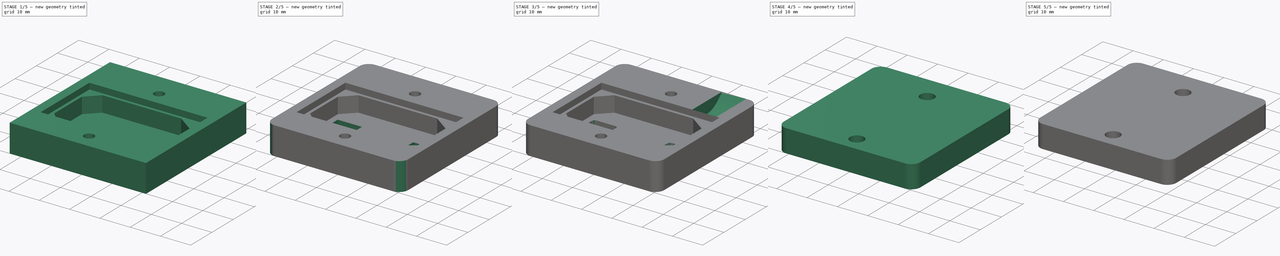
[diagram: build sequence overview — one tinted view per stage of 5, left to right]
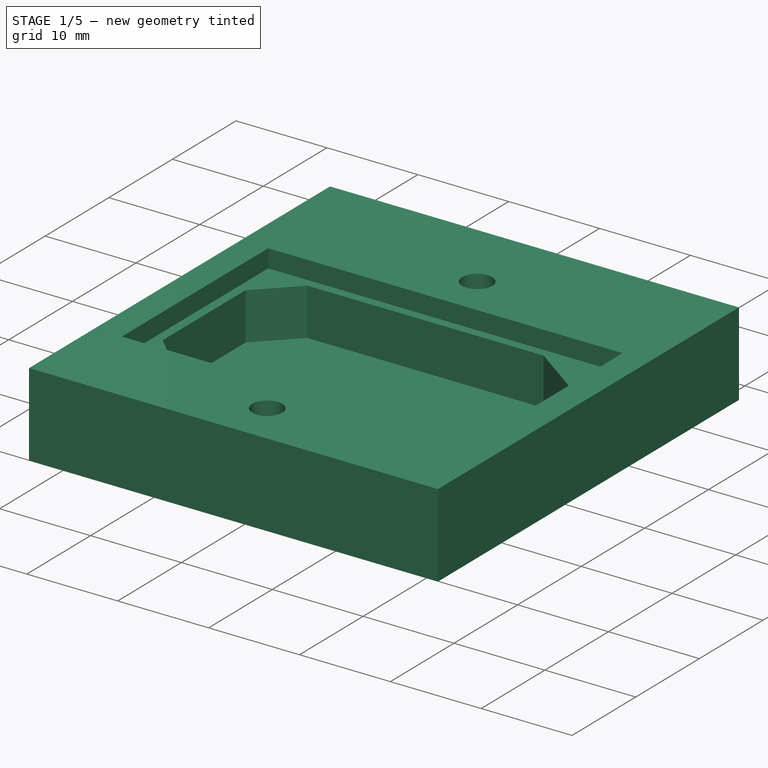
[diagram: stage 1 of 5 — iso view after this stage's code; geometry added in this stage tinted green]
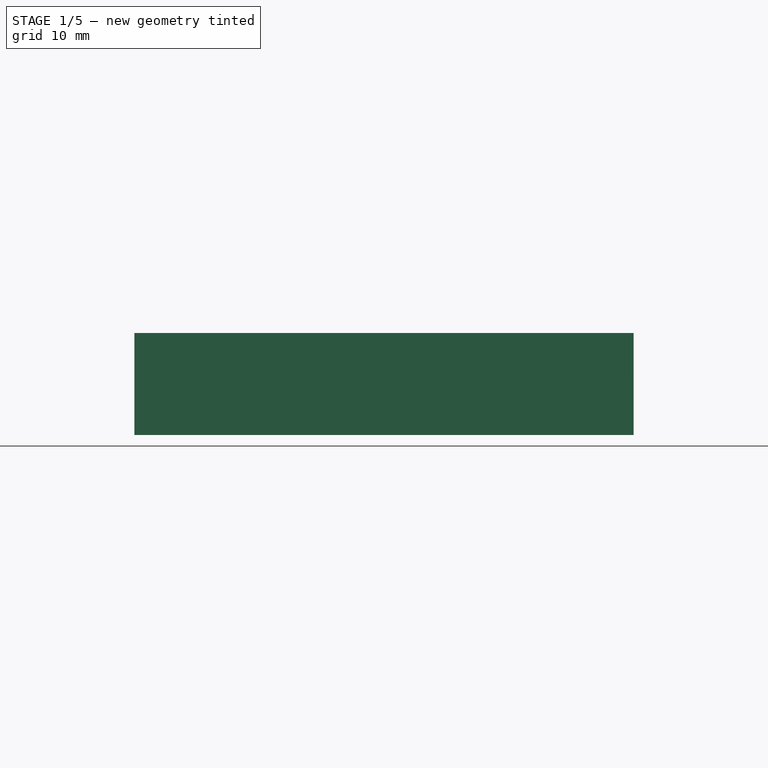
[diagram: stage 1 of 5 — front view after this stage's code; geometry added in this stage tinted green]
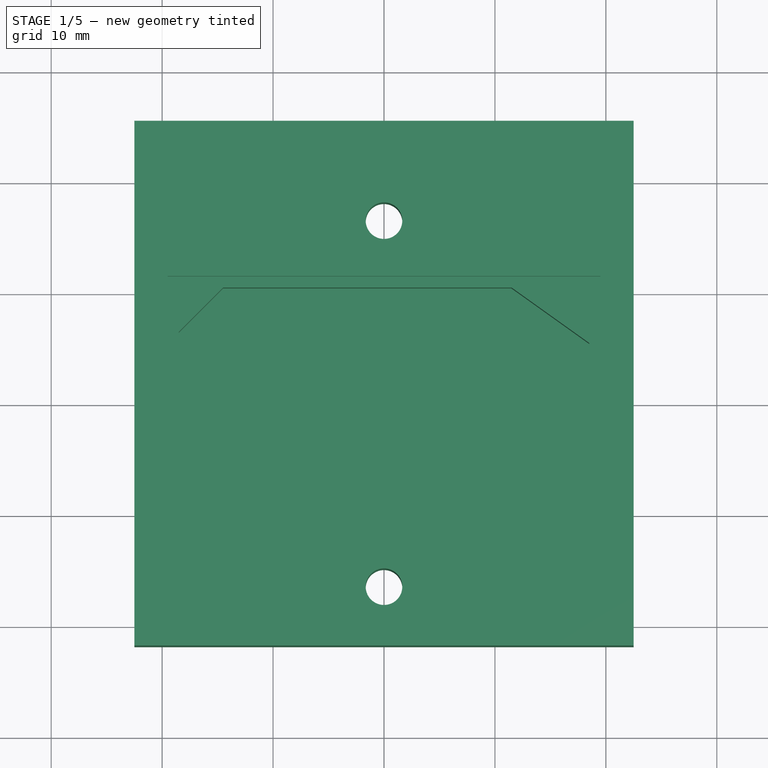
[diagram: stage 1 of 5 — top view after this stage's code; geometry added in this stage tinted green]
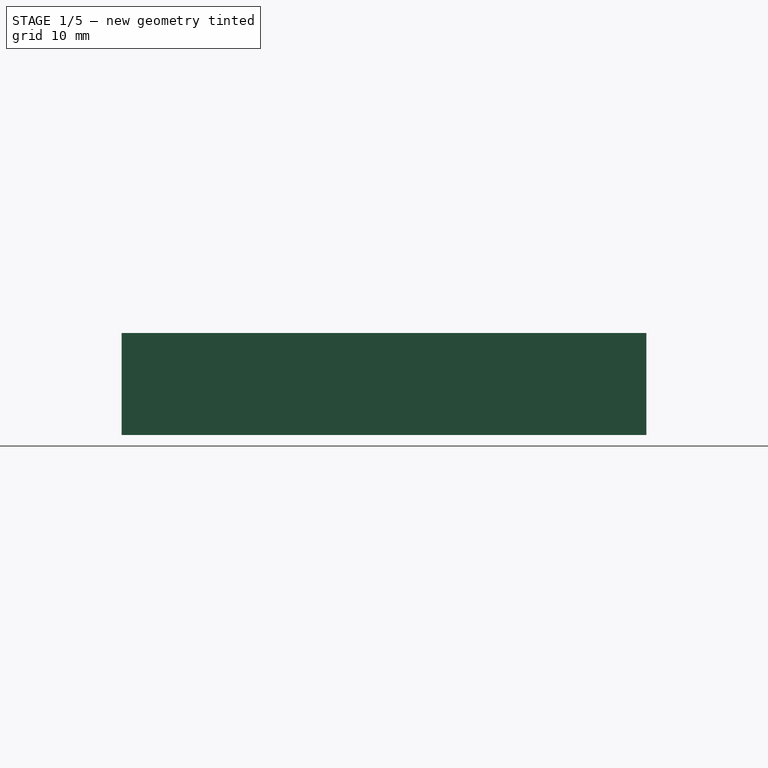
[diagram: stage 1 of 5 — right view after this stage's code; geometry added in this stage tinted green]
FCSTD DOCUMENT  (FreeCAD 0.20R0.20)
Label: linein-enc
License: All rights reserved
LicenseURL: http://en.wikipedia.org/wiki/All_rights_reserved
objects: Sketcher::SketchObject×21, PartDesign::Pocket×9, PartDesign::Pad×5, PartDesign::Fillet×3, PartDesign::SubShapeBinder×2, PartDesign::SubtractiveLoft×2, PartDesign::Body×2, PartDesign::Plane×1
note: 64 computed .brp shape members not serialized (recipe doc carries the construction recipe); baked Part::Feature solids carry a one-line shape summary decoded from their .brp

FEATURE [Sketcher::SketchObject] Sketch  label="MSketch"
  FullyConstrained = false
  MapMode = 5
  Support = -> [XY_Plane]
  sketch-geometry (19):
    g0: LineSegment StartX=-18.5 StartY=10.5 StartZ=0 EndX=-18.5 EndY=-10.5 EndZ=0
    g1: LineSegment StartX=-18.5 StartY=-10.5 StartZ=0 EndX=18.5 EndY=-10.5 EndZ=0
    g2: LineSegment StartX=18.5 StartY=-10.5 StartZ=0 EndX=18.5 EndY=10.5 EndZ=0
    g3: LineSegment StartX=18.5 StartY=10.5 StartZ=0 EndX=-18.5 EndY=10.5 EndZ=0
    g4: GeomPoint X=0 Y=0 Z=0
    g5: Circle CenterX=0 CenterY=16.5 CenterZ=0 NormalX=0 NormalY=0 NormalZ=1 AngleXU=0 Radius=3
    g6: Circle CenterX=0 CenterY=-16.5 CenterZ=0 NormalX=0 NormalY=0 NormalZ=1 AngleXU=0 Radius=3
    g7: LineSegment StartX=9.5 StartY=10.5 StartZ=0 EndX=5.5 EndY=10.5 EndZ=0
    g8: LineSegment StartX=5.5 StartY=10.5 StartZ=0 EndX=5.5 EndY=24.3519 EndZ=0
    g9: LineSegment StartX=5.5 StartY=24.3519 StartZ=0 EndX=9.5 EndY=24.3519 EndZ=0
    g10: LineSegment StartX=9.5 StartY=24.3519 StartZ=0 EndX=9.5 EndY=10.5 EndZ=0
    g11: LineSegment StartX=-16.5 StartY=10.5 StartZ=0 EndX=-12.5 EndY=10.5 EndZ=0
    g12: LineSegment StartX=-12.5 StartY=10.5 StartZ=0 EndX=-12.5 EndY=24.0945 EndZ=0
    g13: LineSegment StartX=-12.5 StartY=24.0945 StartZ=0 EndX=-16.5 EndY=24.0945 EndZ=0
    g14: LineSegment StartX=-16.5 StartY=24.0945 StartZ=0 EndX=-16.5 EndY=10.5 EndZ=0
    g15: LineSegment StartX=-22.5 StartY=25.5 StartZ=0 EndX=22.5 EndY=25.5 EndZ=0
    g16: LineSegment StartX=22.5 StartY=25.5 StartZ=0 EndX=22.5 EndY=-21.8 EndZ=0
    g17: LineSegment StartX=22.5 StartY=-21.8 StartZ=0 EndX=-22.5 EndY=-21.8 EndZ=0
    g18: LineSegment StartX=-22.5 StartY=-21.8 StartZ=0 EndX=-22.5 EndY=25.5 EndZ=0
  constraints (51):
    c: Coincident(g0,g1)
    c: Coincident(g1,g2)
    c: Coincident(g2,g3)
    c: Coincident(g3,g0)
    c: Horizontal(g1)
    c: Horizontal(g3)
    c: Vertical(g0)
    c: Vertical(g2)
    c: Symmetric(g1,g0,g4)
    c: Coincident(g4,g-1)
    c: DistanceY(g2,g2) = 21
    c: DistanceX(g3,g3) = 37
    c: Diameter(g5) = 6
    c: PointOnObject(g5,g-2)
    c: Equal(g6,g5)
    c: Distance(g5,g3) = 6
    c: Symmetric(g5,g6,g-1)
    c: Coincident(g7,g8)
    c: Coincident(g8,g9)
    c: Coincident(g9,g10)
    c: Coincident(g10,g7)
    c: Horizontal(g7)
    c: Horizontal(g9)
    c: Vertical(g8)
    c: Vertical(g10)
    c: PointOnObject(g7,g3)
    c: DistanceX(g9,g9) = 4
    c: DistanceX(g9,g2) = 9
    c: Coincident(g11,g12)
    c: Coincident(g12,g13)
    c: Coincident(g13,g14)
    c: Coincident(g14,g11)
    c: Horizontal(g11)
    c: Horizontal(g13)
    c: Vertical(g12)
    c: Vertical(g14)
    c: PointOnObject(g11,g3)
    c: DistanceX(g13,g13) = 4
    c: DistanceX(g0,g11) = 2
    c: Coincident(g15,g16)
    c: Coincident(g16,g17)
    c: Coincident(g17,g18)
    c: Coincident(g18,g15)
    c: Horizontal(g15)
    c: Horizontal(g17)
    c: Vertical(g16)
    c: Vertical(g18)
    c: Distance(g6,g17) = 5.3
    c: DistanceY(g0,g15) = 15
    c: DistanceX(g17,g0) = 4
    c: DistanceX(g1,g16) = 4
FEATURE [PartDesign::SubShapeBinder] Binder
  BindCopyOnChange = 0
  BindMode = 0
  ClaimChildren = false
  Context = -> Body [Binder.]
  Fuse = false
  MakeFace = true
  OffsetFill = false
  OffsetIntersection = false
  OffsetJoinType = 0
  OffsetOpenResult = false
  PartialLoad = false
  Relative = true
  Support = -> [Sketch]
  _Version = 2
FEATURE [Sketcher::SketchObject] Sketch001
  ExternalGeometry = -> [Binder]
  FullyConstrained = true
  MapMode = 5
  Support = -> [XY_Plane]
  sketch-geometry (4):
    g0: LineSegment StartX=-22.5 StartY=25.5 StartZ=0 EndX=22.5 EndY=25.5 EndZ=0
    g1: LineSegment StartX=22.5 StartY=25.5 StartZ=0 EndX=22.5 EndY=-21.8 EndZ=0
    g2: LineSegment StartX=22.5 StartY=-21.8 StartZ=0 EndX=-22.5 EndY=-21.8 EndZ=0
    g3: LineSegment StartX=-22.5 StartY=-21.8 StartZ=0 EndX=-22.5 EndY=25.5 EndZ=0
  constraints (10):
    c: Coincident(g0,g1)
    c: Coincident(g1,g2)
    c: Coincident(g2,g3)
    c: Coincident(g3,g0)
    c: Horizontal(g0)
    c: Horizontal(g2)
    c: Vertical(g1)
    c: Vertical(g3)
    c: Coincident(g0,g-3)
    c: Coincident(g1,g-4)
FEATURE [PartDesign::Pad] Pad
  Direction = (0,0,1)
  Length = 9.2
  Length2 = 10
  Profile = -> Sketch001
  ReferenceAxis = -> Sketch001 [N_Axis]
  Type = 0
FEATURE [Sketcher::SketchObject] Sketch002
  ExternalGeometry = -> [Binder]
  FullyConstrained = true
  MapMode = 5
  Placement = pos=(0,0,9.2) rot=(0,0,1;0rad)
  Support = -> [Pad]
  sketch-geometry (4):
    g0: LineSegment StartX=-19.5 StartY=11.5 StartZ=0 EndX=19.5 EndY=11.5 EndZ=0
    g1: LineSegment StartX=19.5 StartY=11.5 StartZ=0 EndX=19.5 EndY=-11.5 EndZ=0
    g2: LineSegment StartX=19.5 StartY=-11.5 StartZ=0 EndX=-19.5 EndY=-11.5 EndZ=0
    g3: LineSegment StartX=-19.5 StartY=-11.5 StartZ=0 EndX=-19.5 EndY=11.5 EndZ=0
  constraints (12):
    c: Coincident(g0,g1)
    c: Coincident(g1,g2)
    c: Coincident(g2,g3)
    c: Coincident(g3,g0)
    c: Horizontal(g0)
    c: Horizontal(g2)
    c: Vertical(g1)
    c: Vertical(g3)
    c: DistanceX(g-3,g0) = 1
    c: DistanceX(g2,g-4) = 1
    c: DistanceY(g1,g-4) = 1
    c: DistanceY(g-3,g0) = 1
FEATURE [PartDesign::Pocket] Pocket
  BaseFeature = -> Pad
  Direction = (0,0,-1)
  Length = 2
  Length2 = 5
  Profile = -> Sketch002
  ReferenceAxis = -> Sketch002 [N_Axis]
  Type = 0
FEATURE [Sketcher::SketchObject] Sketch003
  ExternalGeometry = -> [Binder]
  FullyConstrained = true
  MapMode = 5
  Placement = pos=(0,0,9.2) rot=(0,0,1;0rad)
  Support = -> [Pocket]
  sketch-geometry (2):
    g0: Circle CenterX=0 CenterY=16.5 CenterZ=0 NormalX=0 NormalY=0 NormalZ=1 AngleXU=0 Radius=1.65
    g1: Circle CenterX=0 CenterY=-16.5 CenterZ=0 NormalX=0 NormalY=0 NormalZ=1 AngleXU=0 Radius=1.65
  constraints (4):
    c: Coincident(g0,g-3)
    c: Coincident(g1,g-4)
    c: Equal(g0,g1)
    c: Diameter(g0) = 3.3
FEATURE [PartDesign::Pocket] Pocket001
  BaseFeature = -> Pocket
  Direction = (0,0,-1)
  Length = 5
  Length2 = 5
  Profile = -> Sketch003
  ReferenceAxis = -> Sketch003 [N_Axis]
  Type = 1
FEATURE [Sketcher::SketchObject] Sketch004
  ExternalGeometry = -> [Binder]
  FullyConstrained = true
  MapMode = 5
  Placement = pos=(0,0,7.2) rot=(0,0,1;0rad)
  Support = -> [Pocket001]
  sketch-geometry (8):
    g0: LineSegment StartX=-18.5 StartY=6.5 StartZ=0 EndX=-14.5 EndY=10.5 EndZ=0
    g1: LineSegment StartX=-14.5 StartY=10.5 StartZ=0 EndX=11.5 EndY=10.5 EndZ=0
    g2: LineSegment StartX=11.5 StartY=10.5 StartZ=0 EndX=18.5 EndY=5.5 EndZ=0
    g3: LineSegment StartX=18.5 StartY=5.5 StartZ=0 EndX=18.5 EndY=-5.5 EndZ=0
    g4: LineSegment StartX=18.5 StartY=-5.5 StartZ=0 EndX=11.5 EndY=-10.5 EndZ=0
    g5: LineSegment StartX=11.5 StartY=-10.5 StartZ=0 EndX=-14.5 EndY=-10.5 EndZ=0
    g6: LineSegment StartX=-14.5 StartY=-10.5 StartZ=0 EndX=-18.5 EndY=-6.5 EndZ=0
    g7: LineSegment StartX=-18.5 StartY=-6.5 StartZ=0 EndX=-18.5 EndY=6.5 EndZ=0
  constraints (24):
    c: PointOnObject(g0,g-3)
    c: PointOnObject(g0,g-5)
    c: Coincident(g0,g1)
    c: PointOnObject(g1,g-5)
    c: Coincident(g1,g2)
    c: PointOnObject(g2,g-4)
    c: Coincident(g2,g3)
    c: PointOnObject(g3,g-4)
    c: Coincident(g3,g4)
    c: PointOnObject(g4,g-6)
    c: Coincident(g4,g5)
    c: PointOnObject(g5,g-6)
    c: Coincident(g5,g6)
    c: PointOnObject(g6,g-3)
    c: Coincident(g6,g7)
    c: Coincident(g7,g0)
    c: DistanceX(g-5,g0) = 4
    c: DistanceY(g0,g-5) = 4
    c: DistanceY(g-6,g6) = 4
    c: DistanceX(g-6,g5) = 4
    c: DistanceY(g-6,g3) = 5
    c: DistanceX(g4,g-6) = 7
    c: DistanceX(g1,g-5) = 7
    c: DistanceY(g2,g-5) = 5
FEATURE [PartDesign::Pocket] Pocket002
  BaseFeature = -> Pocket001
  Direction = (0,0,-1)
  Length = 5.2
  Length2 = 5
  Profile = -> Sketch004
  ReferenceAxis = -> Sketch004 [N_Axis]
  Type = 0
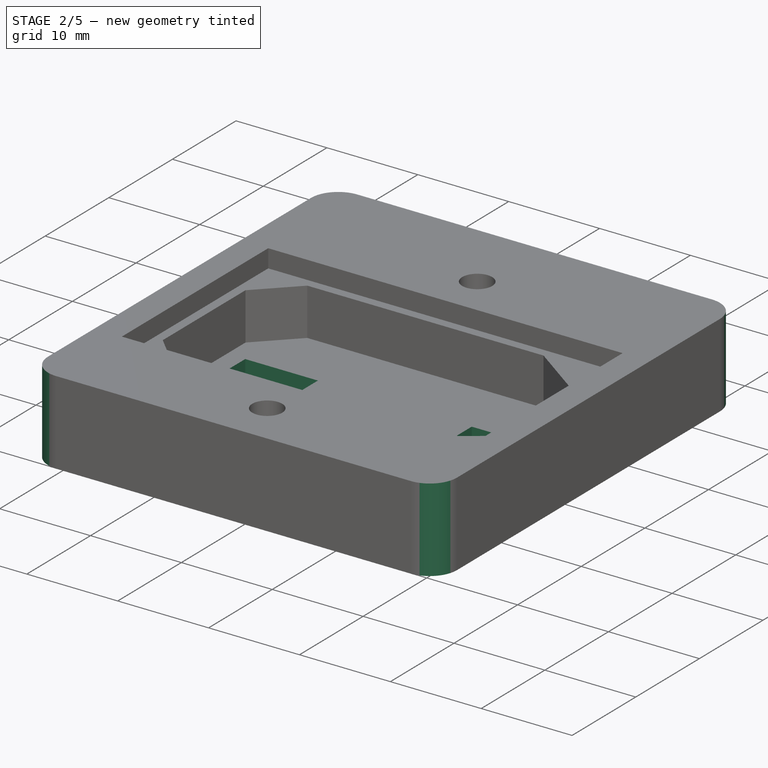
[diagram: stage 2 of 5 — iso view after this stage's code; geometry added in this stage tinted green]
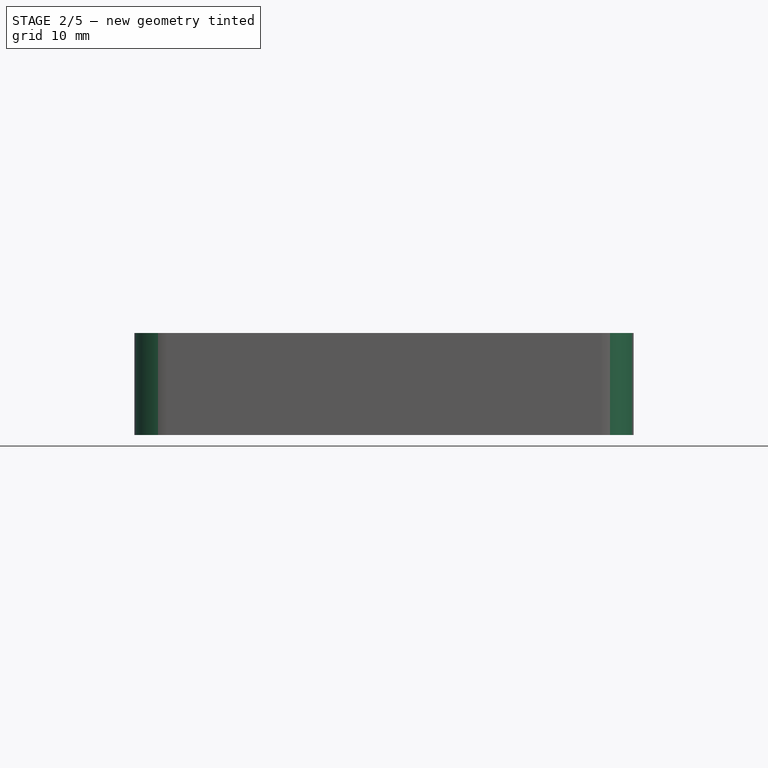
[diagram: stage 2 of 5 — front view after this stage's code; geometry added in this stage tinted green]
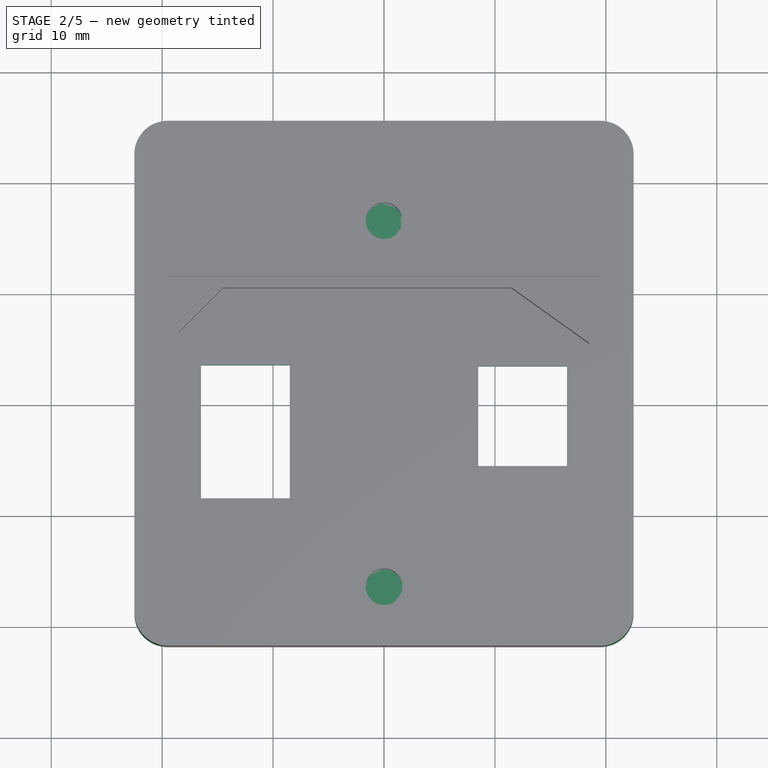
[diagram: stage 2 of 5 — top view after this stage's code; geometry added in this stage tinted green]
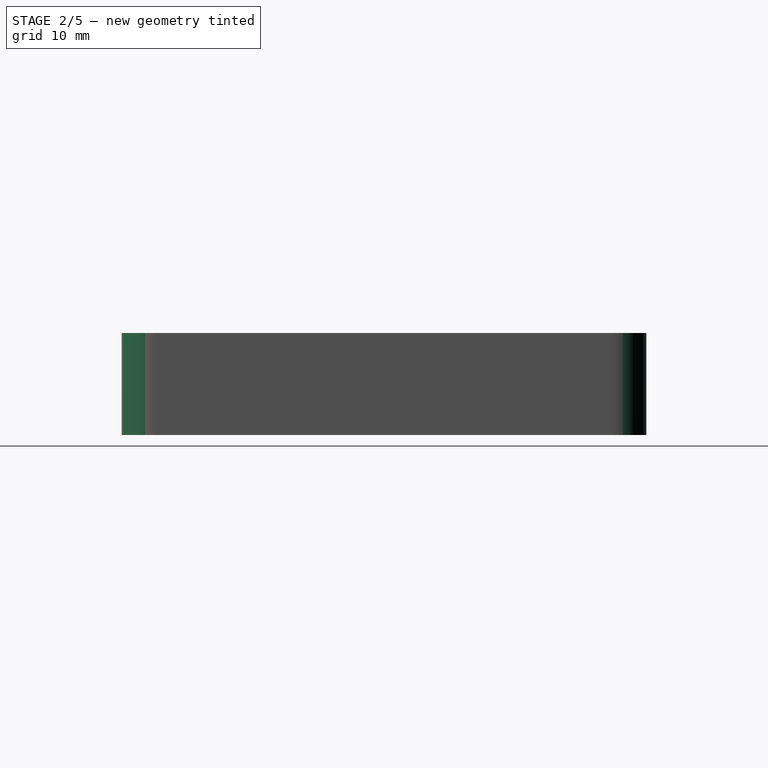
[diagram: stage 2 of 5 — right view after this stage's code; geometry added in this stage tinted green]
FEATURE [Sketcher::SketchObject] Sketch005
  ExternalGeometry = -> [Binder]
  FullyConstrained = true
  MapMode = 5
  Placement = pos=(0,0,2) rot=(0,0,1;0rad)
  Support = -> [Pocket002]
  sketch-geometry (8):
    g0: LineSegment StartX=8.5 StartY=3.5 StartZ=0 EndX=16.5 EndY=3.5 EndZ=0
    g1: LineSegment StartX=16.5 StartY=3.5 StartZ=0 EndX=16.5 EndY=-5.5 EndZ=0
    g2: LineSegment StartX=16.5 StartY=-5.5 StartZ=0 EndX=8.5 EndY=-5.5 EndZ=0
    g3: LineSegment StartX=8.5 StartY=-5.5 StartZ=0 EndX=8.5 EndY=3.5 EndZ=0
    g4: LineSegment StartX=-16.5 StartY=3.6 StartZ=0 EndX=-8.5 EndY=3.6 EndZ=0
    g5: LineSegment StartX=-8.5 StartY=3.6 StartZ=0 EndX=-8.5 EndY=-8.4 EndZ=0
    g6: LineSegment StartX=-8.5 StartY=-8.4 StartZ=0 EndX=-16.5 EndY=-8.4 EndZ=0
    g7: LineSegment StartX=-16.5 StartY=-8.4 StartZ=0 EndX=-16.5 EndY=3.6 EndZ=0
  constraints (24):
    c: Coincident(g0,g1)
    c: Coincident(g1,g2)
    c: Coincident(g2,g3)
    c: Coincident(g3,g0)
    c: Horizontal(g0)
    c: Horizontal(g2)
    c: Vertical(g1)
    c: Vertical(g3)
    c: Coincident(g4,g5)
    c: Coincident(g5,g6)
    c: Coincident(g6,g7)
    c: Coincident(g7,g4)
    c: Horizontal(g4)
    c: Horizontal(g6)
    c: Vertical(g5)
    c: Vertical(g7)
    c: DistanceX(g0,g0) = 8
    c: DistanceY(g3,g3) = 9
    c: DistanceX(g1,g-3) = 2
    c: DistanceY(g-3,g1) = 5
    c: DistanceY(g7,g7) = 12
    c: DistanceX(g4,g4) = 8
    c: DistanceX(g-4,g6) = 2
    c: DistanceY(g-4,g6) = 2.1
FEATURE [PartDesign::Pocket] Pocket003
  BaseFeature = -> Pocket002
  Direction = (0,0,-1)
  Length = 5
  Length2 = 5
  Profile = -> Sketch005
  ReferenceAxis = -> Sketch005 [N_Axis]
  Type = 1
FEATURE [Sketcher::SketchObject] Sketch006
  ExternalGeometry = -> [Pocket003]
  FullyConstrained = true
  MapMode = 5
  Placement = pos=(0,0,0) rot=(1,0,0;3.14159rad)
  Support = -> [Pocket003]
  sketch-geometry (2):
    g0: Circle CenterX=0 CenterY=16.5 CenterZ=0 NormalX=0 NormalY=0 NormalZ=1 AngleXU=0 Radius=3
    g1: Circle CenterX=0 CenterY=-16.5 CenterZ=0 NormalX=0 NormalY=0 NormalZ=1 AngleXU=0 Radius=3
  constraints (4):
    c: Coincident(g0,g-3)
    c: Coincident(g1,g-4)
    c: Equal(g1,g0)
    c: Diameter(g0) = 6
FEATURE [PartDesign::Pocket] Pocket004
  BaseFeature = -> Pocket003
  Direction = (0,0,1)
  Length = 5
  Length2 = 5
  Profile = -> Sketch006
  ReferenceAxis = -> Sketch006 [N_Axis]
  Type = 0
FEATURE [Sketcher::SketchObject] Sketch007
  FullyConstrained = false
  MapMode = 5
  Placement = pos=(0,0,5) rot=(1,0,0;3.14159rad)
  Support = -> [Pocket004]
  sketch-geometry (8):
    g0: LineSegment StartX=-5.04285 StartY=20.7352 StartZ=0 EndX=6.28256 EndY=20.7352 EndZ=0
    g1: LineSegment StartX=6.28256 StartY=20.7352 StartZ=0 EndX=6.28256 EndY=12.4651 EndZ=0
    g2: LineSegment StartX=6.28256 StartY=12.4651 StartZ=0 EndX=-5.04285 EndY=12.4651 EndZ=0
    g3: LineSegment StartX=-5.04285 StartY=12.4651 StartZ=0 EndX=-5.04285 EndY=20.7352 EndZ=0
    g4: LineSegment StartX=-5.72764 StartY=-12.9776 StartZ=0 EndX=3.33269 EndY=-12.9776 EndZ=0
    g5: LineSegment StartX=3.33269 StartY=-12.9776 StartZ=0 EndX=3.33269 EndY=-20.5103 EndZ=0
    g6: LineSegment StartX=3.33269 StartY=-20.5103 StartZ=0 EndX=-5.72764 EndY=-20.5103 EndZ=0
    g7: LineSegment StartX=-5.72764 StartY=-20.5103 StartZ=0 EndX=-5.72764 EndY=-12.9776 EndZ=0
  constraints (16):
    c: Coincident(g0,g1)
    c: Coincident(g1,g2)
    c: Coincident(g2,g3)
    c: Coincident(g3,g0)
    c: Horizontal(g0)
    c: Horizontal(g2)
    c: Vertical(g1)
    c: Vertical(g3)
    c: Coincident(g4,g5)
    c: Coincident(g5,g6)
    c: Coincident(g6,g7)
    c: Coincident(g7,g4)
    c: Horizontal(g4)
    c: Horizontal(g6)
    c: Vertical(g5)
    c: Vertical(g7)
FEATURE [PartDesign::Pad] Pad001
  BaseFeature = -> Pocket004
  Direction = (0,0,-1)
  Length = 0.2
  Length2 = 10
  Profile = -> Sketch007
  ReferenceAxis = -> Sketch007 [N_Axis]
  Type = 0
FEATURE [PartDesign::Fillet] Fillet
  Base = -> Pad001 [Edge8,Edge2,Edge1,Edge5]
  BaseFeature = -> Pad001
  Radius = 3
  SupportTransform = false
  UseAllEdges = false
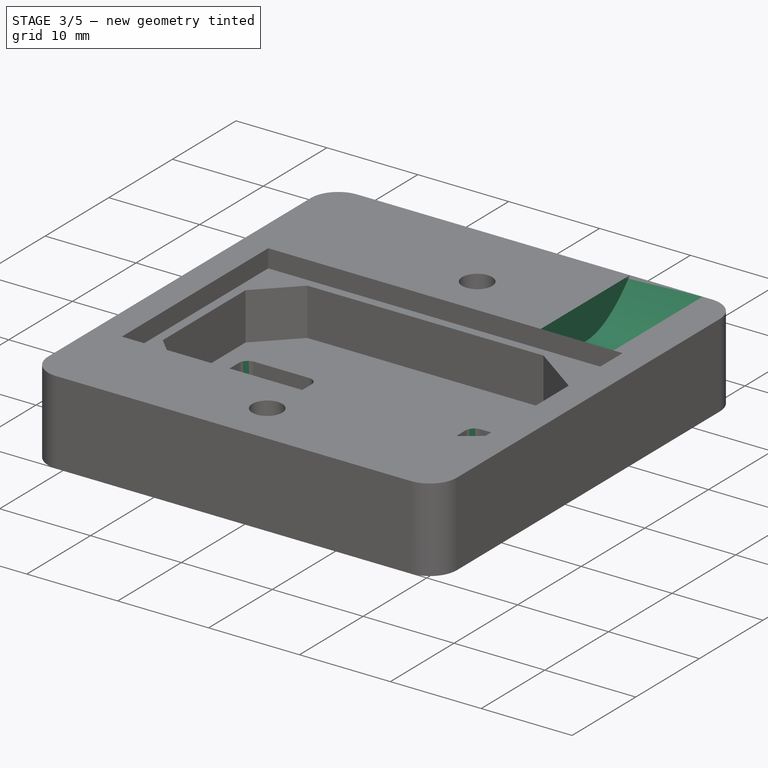
[diagram: stage 3 of 5 — iso view after this stage's code; geometry added in this stage tinted green]
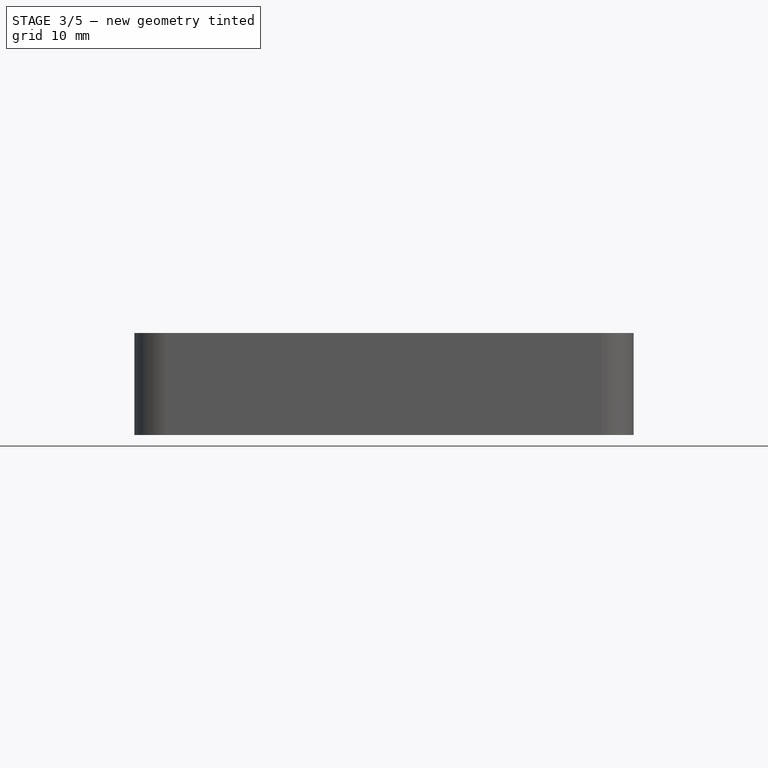
[diagram: stage 3 of 5 — front view after this stage's code; geometry added in this stage tinted green]
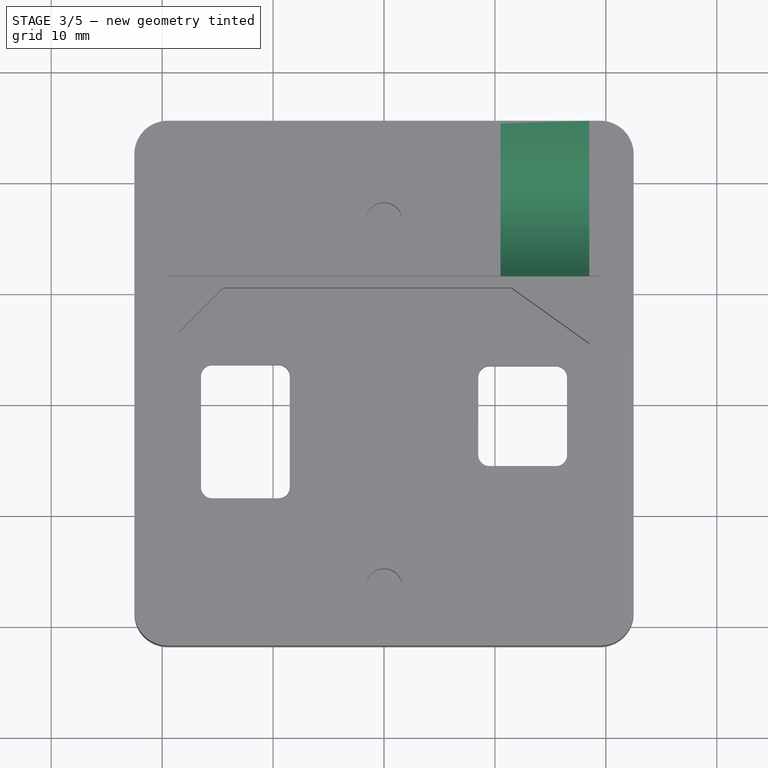
[diagram: stage 3 of 5 — top view after this stage's code; geometry added in this stage tinted green]
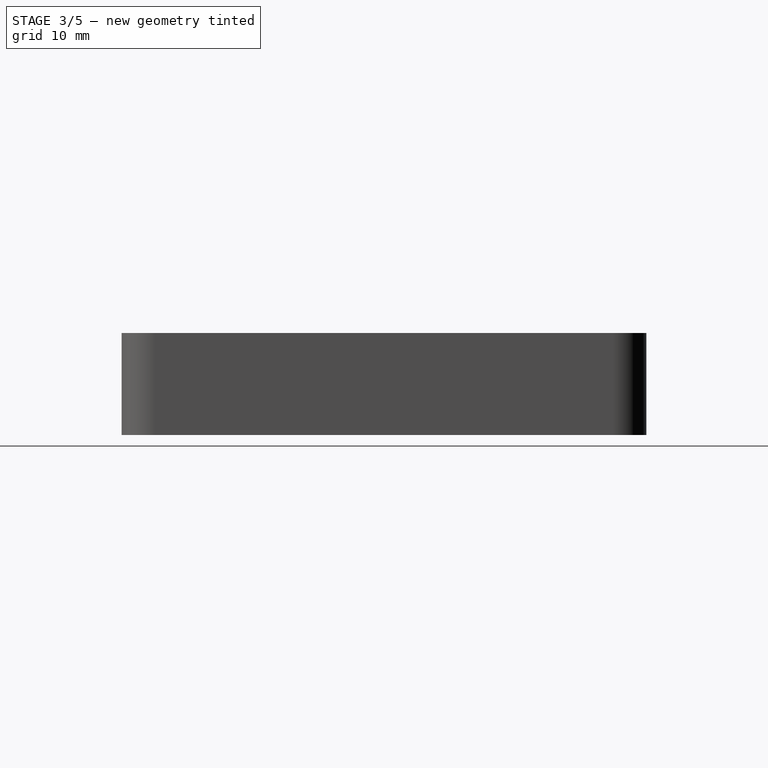
[diagram: stage 3 of 5 — right view after this stage's code; geometry added in this stage tinted green]
FEATURE [PartDesign::Fillet] Fillet001
  Base = -> Fillet [Edge57,Edge55,Edge53,Edge52]
  BaseFeature = -> Fillet
  Radius = 1
  SupportTransform = false
  UseAllEdges = false
FEATURE [PartDesign::Fillet] Fillet002
  Base = -> Fillet001 [Edge61,Edge59,Edge57,Edge56]
  BaseFeature = -> Fillet001
  Radius = 1
  SupportTransform = false
  UseAllEdges = false
FEATURE [Sketcher::SketchObject] Sketch008
  ExternalGeometry = -> [Fillet002]
  FullyConstrained = true
  MapMode = 5
  Placement = pos=(0,11.5,0) rot=(1,0,0;1.5708rad)
  Support = -> [Fillet002]
  sketch-geometry (4):
    g0: LineSegment StartX=18.5 StartY=9.2 StartZ=0 EndX=10.5 EndY=9.2 EndZ=0
    g1: LineSegment StartX=10.5 StartY=9.2 StartZ=0 EndX=10.5 EndY=10.7 EndZ=0
    g2: LineSegment StartX=10.5 StartY=10.7 StartZ=0 EndX=18.5 EndY=10.7 EndZ=0
    g3: LineSegment StartX=18.5 StartY=10.7 StartZ=0 EndX=18.5 EndY=9.2 EndZ=0
  constraints (12):
    c: Coincident(g0,g1)
    c: Coincident(g1,g2)
    c: Coincident(g2,g3)
    c: Coincident(g3,g0)
    c: Horizontal(g0)
    c: Horizontal(g2)
    c: Vertical(g1)
    c: Vertical(g3)
    c: PointOnObject(g0,g-4)
    c: DistanceX(g2,g2) = 8
    c: DistanceX(g2,g-4) = 1
    c: DistanceY(g1,g1) = 1.5
FEATURE [PartDesign::Plane] DatumPlane
  AttachmentOffset = pos=(0,24,-7) rot=(0,0,1;0rad)
  Length = 60
  MapMode = 5
  Placement = pos=(0,18.5,24) rot=(1,0,0;1.5708rad)
  ResizeMode = 0
  Support = -> [Fillet002]
  Width = 60
FEATURE [Sketcher::SketchObject] Sketch009
  ExternalGeometry = -> [Sketch008,Fillet002]
  FullyConstrained = false
  MapMode = 5
  Placement = pos=(0,18.5,24) rot=(1,0,0;1.5708rad)
  Support = -> [DatumPlane]
  sketch-geometry (4):
    g0: LineSegment StartX=10.5 StartY=-13.3803 StartZ=0 EndX=18.5 EndY=-13.3803 EndZ=0
    g1: LineSegment StartX=18.5 StartY=-13.3803 StartZ=0 EndX=18.5 EndY=-18.7214 EndZ=0
    g2: LineSegment StartX=18.5 StartY=-18.7214 StartZ=0 EndX=10.5 EndY=-18.7214 EndZ=0
    g3: LineSegment StartX=10.5 StartY=-18.7214 StartZ=0 EndX=10.5 EndY=-13.3803 EndZ=0
  constraints (10):
    c: Coincident(g0,g1)
    c: Coincident(g1,g2)
    c: Coincident(g2,g3)
    c: Coincident(g3,g0)
    c: Horizontal(g0)
    c: Horizontal(g2)
    c: Vertical(g1)
    c: Vertical(g3)
    c: Vertical(g0,g-4)
    c: Vertical(g-3,g0)
FEATURE [Sketcher::SketchObject] Sketch010
  ExternalGeometry = -> [Sketch008]
  FullyConstrained = true
  MapMode = 5
  Placement = pos=(0,25.5,0) rot=(0,0.707107,0.707107;3.14159rad)
  Support = -> [Fillet002]
  sketch-geometry (4):
    g0: LineSegment StartX=-18.5 StartY=10.7 StartZ=0 EndX=-10.5 EndY=10.7 EndZ=0
    g1: LineSegment StartX=-10.5 StartY=10.7 StartZ=0 EndX=-10.5 EndY=9.2 EndZ=0
    g2: LineSegment StartX=-10.5 StartY=9.2 StartZ=0 EndX=-18.5 EndY=9.2 EndZ=0
    g3: LineSegment StartX=-18.5 StartY=9.2 StartZ=0 EndX=-18.5 EndY=10.7 EndZ=0
  constraints (10):
    c: Coincident(g0,g1)
    c: Coincident(g1,g2)
    c: Coincident(g2,g3)
    c: Coincident(g3,g0)
    c: Horizontal(g0)
    c: Horizontal(g2)
    c: Vertical(g1)
    c: Vertical(g3)
    c: Coincident(g0,g-3)
    c: Coincident(g1,g-4)
FEATURE [PartDesign::SubtractiveLoft] SubtractiveLoft
  BaseFeature = -> Fillet002
  Closed = false
  Profile = -> Sketch008
  Ruled = false
  Sections = -> [Sketch009,Sketch010]
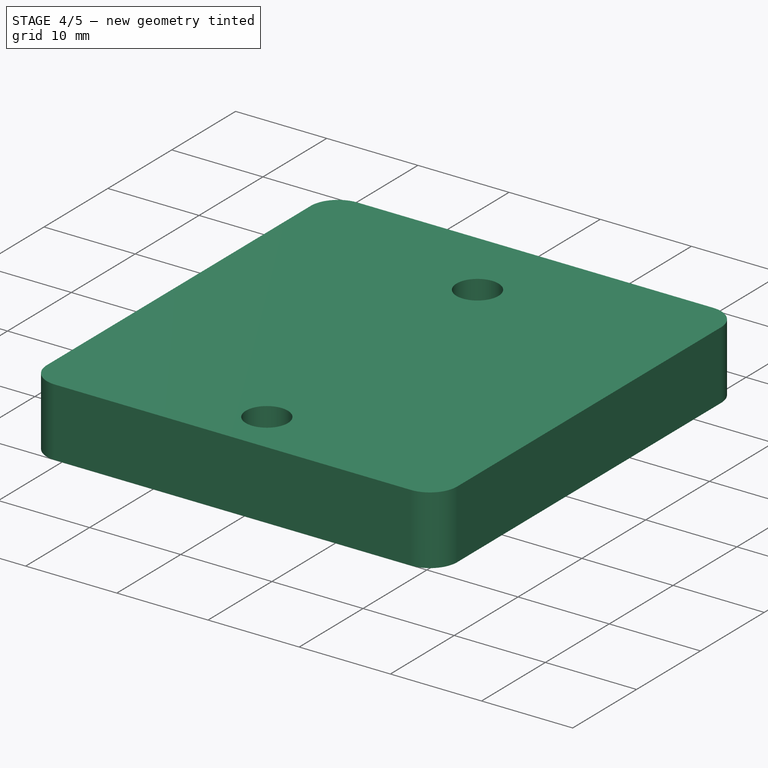
[diagram: stage 4 of 5 — iso view after this stage's code; geometry added in this stage tinted green]
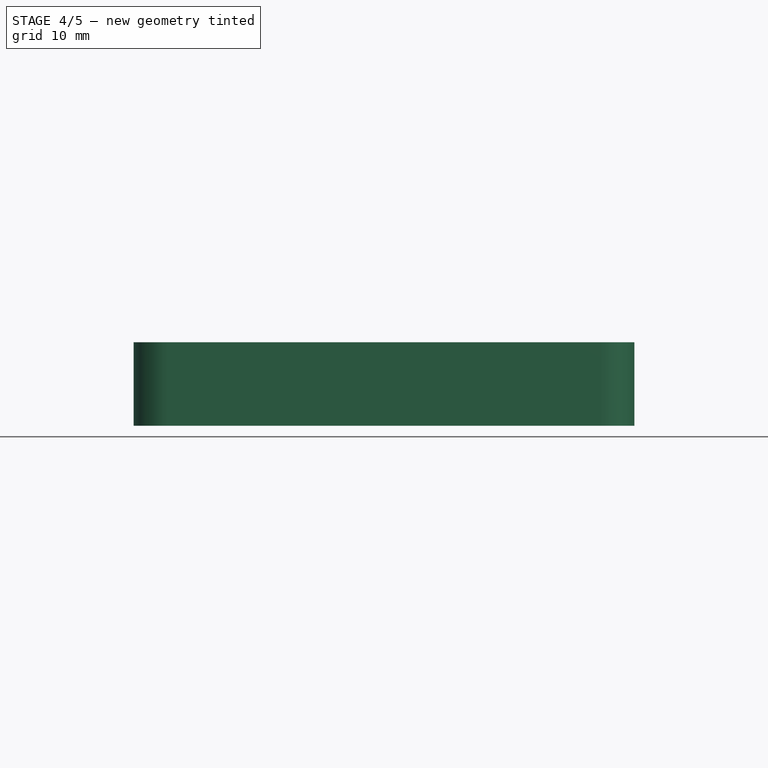
[diagram: stage 4 of 5 — front view after this stage's code; geometry added in this stage tinted green]
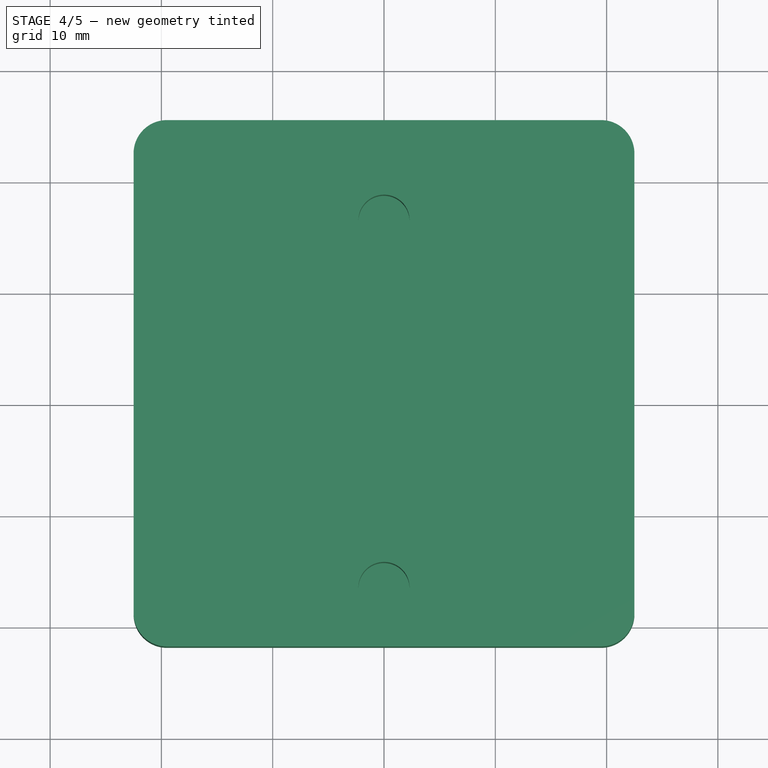
[diagram: stage 4 of 5 — top view after this stage's code; geometry added in this stage tinted green]
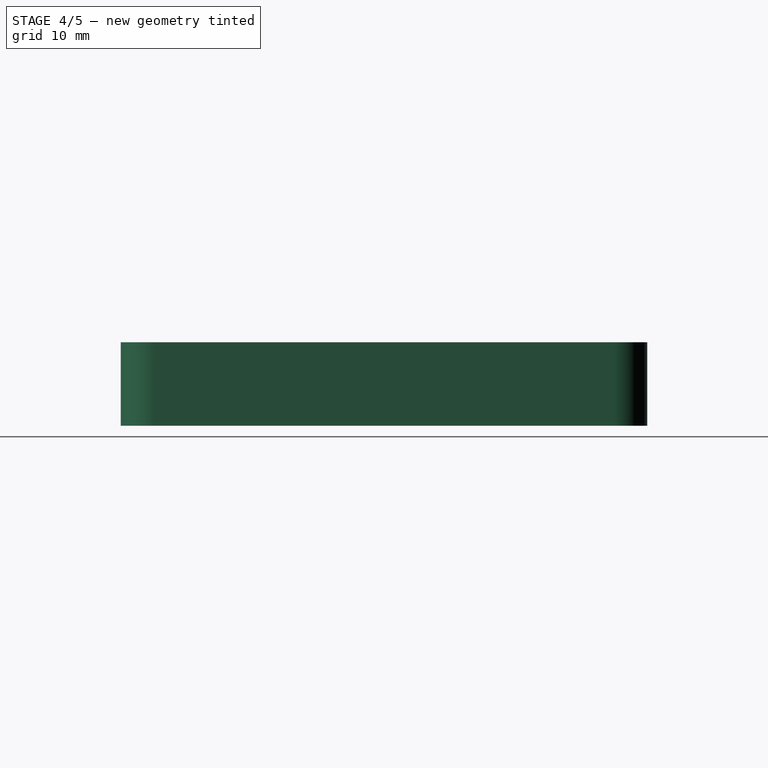
[diagram: stage 4 of 5 — right view after this stage's code; geometry added in this stage tinted green]
FEATURE [Sketcher::SketchObject] Sketch011
  ExternalGeometry = -> [SubtractiveLoft,Sketch009]
  FullyConstrained = true
  MapMode = 5
  Placement = pos=(0,11.5,0) rot=(1,0,0;1.5708rad)
  Support = -> [SubtractiveLoft]
  sketch-geometry (4):
    g0: LineSegment StartX=-14.5 StartY=9.2 StartZ=0 EndX=-6.5 EndY=9.2 EndZ=0
    g1: LineSegment StartX=-6.5 StartY=9.2 StartZ=0 EndX=-6.5 EndY=10.7 EndZ=0
    g2: LineSegment StartX=-6.5 StartY=10.7 StartZ=0 EndX=-14.5 EndY=10.7 EndZ=0
    g3: LineSegment StartX=-14.5 StartY=10.7 StartZ=0 EndX=-14.5 EndY=9.2 EndZ=0
  constraints (12):
    c: Coincident(g0,g1)
    c: Coincident(g1,g2)
    c: Coincident(g2,g3)
    c: Coincident(g3,g0)
    c: Horizontal(g0)
    c: Horizontal(g2)
    c: Vertical(g1)
    c: Vertical(g3)
    c: PointOnObject(g0,g-3)
    c: DistanceY(g1,g1) = 1.5
    c: DistanceX(g2,g2) = 8
    c: DistanceX(g-3,g2) = 5
FEATURE [Sketcher::SketchObject] Sketch012
  ExternalGeometry = -> [Sketch011,Sketch009]
  FullyConstrained = true
  MapMode = 5
  Placement = pos=(0,18.5,24) rot=(1,0,0;1.5708rad)
  Support = -> [DatumPlane]
  sketch-geometry (4):
    g0: LineSegment StartX=-14.5 StartY=-13.3 StartZ=0 EndX=-6.5 EndY=-13.3 EndZ=0
    g1: LineSegment StartX=-6.5 StartY=-13.3 StartZ=0 EndX=-6.5 EndY=-18.7214 EndZ=0
    g2: LineSegment StartX=-6.5 StartY=-18.7214 StartZ=0 EndX=-14.5 EndY=-18.7214 EndZ=0
    g3: LineSegment StartX=-14.5 StartY=-18.7214 StartZ=0 EndX=-14.5 EndY=-13.3 EndZ=0
  constraints (10):
    c: Coincident(g0,g1)
    c: Coincident(g1,g2)
    c: Coincident(g2,g3)
    c: Coincident(g3,g0)
    c: Horizontal(g2)
    c: Vertical(g1)
    c: Vertical(g3)
    c: Coincident(g0,g-3)
    c: Coincident(g-4,g0)
    c: Horizontal(g1,g-5)
FEATURE [Sketcher::SketchObject] Sketch013
  ExternalGeometry = -> [Sketch011]
  FullyConstrained = true
  MapMode = 5
  Placement = pos=(0,25.5,0) rot=(0,0.707107,0.707107;3.14159rad)
  Support = -> [SubtractiveLoft]
  sketch-geometry (4):
    g0: LineSegment StartX=6.5 StartY=10.7 StartZ=0 EndX=14.5 EndY=10.7 EndZ=0
    g1: LineSegment StartX=14.5 StartY=10.7 StartZ=0 EndX=14.5 EndY=9.2 EndZ=0
    g2: LineSegment StartX=14.5 StartY=9.2 StartZ=0 EndX=6.5 EndY=9.2 EndZ=0
    g3: LineSegment StartX=6.5 StartY=9.2 StartZ=0 EndX=6.5 EndY=10.7 EndZ=0
  constraints (10):
    c: Coincident(g0,g1)
    c: Coincident(g1,g2)
    c: Coincident(g2,g3)
    c: Coincident(g3,g0)
    c: Horizontal(g0)
    c: Horizontal(g2)
    c: Vertical(g1)
    c: Vertical(g3)
    c: Coincident(g0,g-3)
    c: Coincident(g1,g-4)
FEATURE [PartDesign::SubtractiveLoft] SubtractiveLoft001
  BaseFeature = -> SubtractiveLoft
  Closed = false
  Profile = -> Sketch011
  Ruled = false
  Sections = -> [Sketch012,Sketch013]
FEATURE [PartDesign::Body] Body  label="ltop"
  Group = -> [Binder,Sketch001,Pad,Sketch002,Pocket,Sketch003,Pocket001,Sketch004,Pocket002,Sketch005,Pocket003,Sketch006,Pocket004,Sketch007,Pad001,Fillet,Fillet001,Fillet002,Sketch008,DatumPlane,Sketch009,Sketch010,SubtractiveLoft,Sketch011,Sketch012,Sketch013,SubtractiveLoft001]
  Origin = -> Origin
  Tip = -> SubtractiveLoft001
FEATURE [PartDesign::SubShapeBinder] Binder001
  BindCopyOnChange = 0
  BindMode = 0
  ClaimChildren = false
  Context = -> Body001 [Binder001.]
  Fuse = false
  MakeFace = true
  OffsetFill = false
  OffsetIntersection = false
  OffsetJoinType = 0
  OffsetOpenResult = false
  PartialLoad = false
  Relative = true
  Support = -> [Body]
  _Version = 2
FEATURE [Sketcher::SketchObject] Sketch014
  AttachmentOffset = pos=(0,0,9.2) rot=(0,0,1;0rad)
  ExternalGeometry = -> [Binder001]
  FullyConstrained = true
  MapMode = 5
  Placement = pos=(0,0,9.2) rot=(0,0,1;0rad)
  Support = -> [XY_Plane001]
  sketch-geometry (10):
    g0: ArcOfCircle CenterX=-19.5 CenterY=22.5 CenterZ=0 NormalX=0 NormalY=0 NormalZ=1 AngleXU=0 Radius=3 StartAngle=1.5708 EndAngle=3.14159
    g1: LineSegment StartX=-19.5 StartY=25.5 StartZ=0 EndX=19.5 EndY=25.5 EndZ=0
    g2: ArcOfCircle CenterX=19.5 CenterY=22.5 CenterZ=0 NormalX=0 NormalY=0 NormalZ=1 AngleXU=0 Radius=3 StartAngle=0 EndAngle=1.5708
    g3: LineSegment StartX=22.5 StartY=22.5 StartZ=0 EndX=22.5 EndY=-18.8 EndZ=0
    g4: ArcOfCircle CenterX=19.5 CenterY=-18.8 CenterZ=0 NormalX=0 NormalY=0 NormalZ=1 AngleXU=0 Radius=3 StartAngle=4.71239 EndAngle=6.28319
    g5: LineSegment StartX=19.5 StartY=-21.8 StartZ=0 EndX=-19.5 EndY=-21.8 EndZ=0
    g6: ArcOfCircle CenterX=-19.5 CenterY=-18.8 CenterZ=0 NormalX=0 NormalY=0 NormalZ=1 AngleXU=0 Radius=3 StartAngle=3.14159 EndAngle=4.71239
    g7: LineSegment StartX=-22.5 StartY=-18.8 StartZ=0 EndX=-22.5 EndY=22.5 EndZ=0
    g8: GeomPoint X=-22.5 Y=25.5 Z=0
    g9: GeomPoint X=22.5 Y=-21.8 Z=0
  constraints (21):
    c: Tangent(g0,g1) = 1.5708
    c: Tangent(g1,g2) = 1.5708
    c: Tangent(g2,g3) = 1.5708
    c: Tangent(g3,g4) = 1.5708
    c: Tangent(g4,g5) = 1.5708
    c: Tangent(g5,g6) = 1.5708
    c: Tangent(g6,g7) = 1.5708
    c: Tangent(g7,g0) = 1.5708
    c: Horizontal(g1)
    c: Horizontal(g5)
    c: Vertical(g3)
    c: Equal(g0,g2)
    c: Equal(g2,g4)
    c: Equal(g4,g6)
    c: PointOnObject(g8,g1)
    c: PointOnObject(g8,g7)
    c: PointOnObject(g9,g3)
    c: PointOnObject(g9,g5)
    c: Coincident(g3,g-4)
    c: Coincident(g0,g-3)
    c: Coincident(g0,g-6)
FEATURE [PartDesign::Pad] Pad002
  Direction = (0,0,1)
  Length = 7.5
  Length2 = 10
  Profile = -> Sketch014
  ReferenceAxis = -> Sketch014 [N_Axis]
  Type = 0
FEATURE [Sketcher::SketchObject] Sketch015
  ExternalGeometry = -> [Binder001]
  FullyConstrained = true
  MapMode = 5
  Placement = pos=(0,0,16.7) rot=(0,0,1;0rad)
  Support = -> [Pad002]
  sketch-geometry (2):
    g0: Circle CenterX=0 CenterY=16.5 CenterZ=0 NormalX=0 NormalY=0 NormalZ=1 AngleXU=0 Radius=2.3
    g1: Circle CenterX=0 CenterY=-16.5 CenterZ=0 NormalX=0 NormalY=0 NormalZ=1 AngleXU=0 Radius=2.3
  constraints (4):
    c: Coincident(g0,g-3)
    c: Coincident(g1,g-4)
    c: Equal(g1,g0)
    c: Diameter(g0) = 4.6
FEATURE [PartDesign::Pocket] Pocket005
  BaseFeature = -> Pad002
  Direction = (0,0,-1)
  Length = 6.3
  Length2 = 5
  Profile = -> Sketch015
  ReferenceAxis = -> Sketch015 [N_Axis]
  Type = 0
FEATURE [Sketcher::SketchObject] Sketch016
  AttachmentOffset = pos=(0,0,-0.2) rot=(0,0,1;0rad)
  ExternalGeometry = -> [Pocket005]
  FullyConstrained = true
  MapMode = 5
  Placement = pos=(0,0,10.2) rot=(0,0,1;0rad)
  Support = -> [Pocket005]
  sketch-geometry (2):
    g0: Circle CenterX=0 CenterY=16.5 CenterZ=0 NormalX=0 NormalY=0 NormalZ=1 AngleXU=0 Radius=1.65
    g1: Circle CenterX=0 CenterY=-16.5 CenterZ=0 NormalX=0 NormalY=0 NormalZ=1 AngleXU=0 Radius=1.65
  constraints (4):
    c: Coincident(g0,g-3)
    c: Coincident(g1,g-4)
    c: Equal(g0,g1)
    c: Diameter(g1) = 3.3
FEATURE [PartDesign::Pocket] Pocket006
  BaseFeature = -> Pocket005
  Direction = (0,0,-1)
  Length = 0
  Length2 = 5
  Profile = -> Sketch016
  ReferenceAxis = -> Sketch016 [N_Axis]
  Type = 3
  UpToFace = -> Pocket005 [Face4]
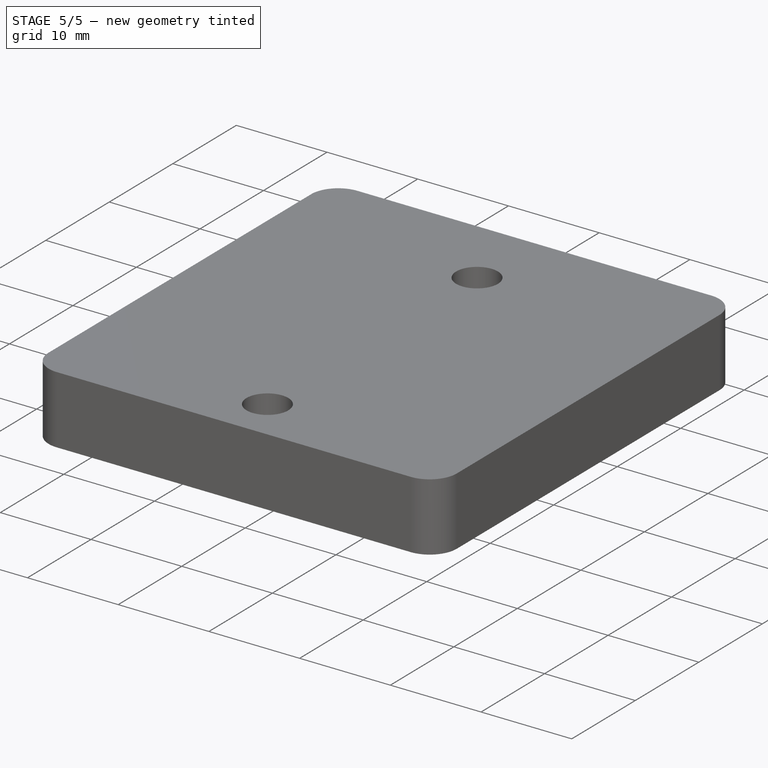
[diagram: stage 5 of 5 — iso view after this stage's code; geometry added in this stage tinted green]
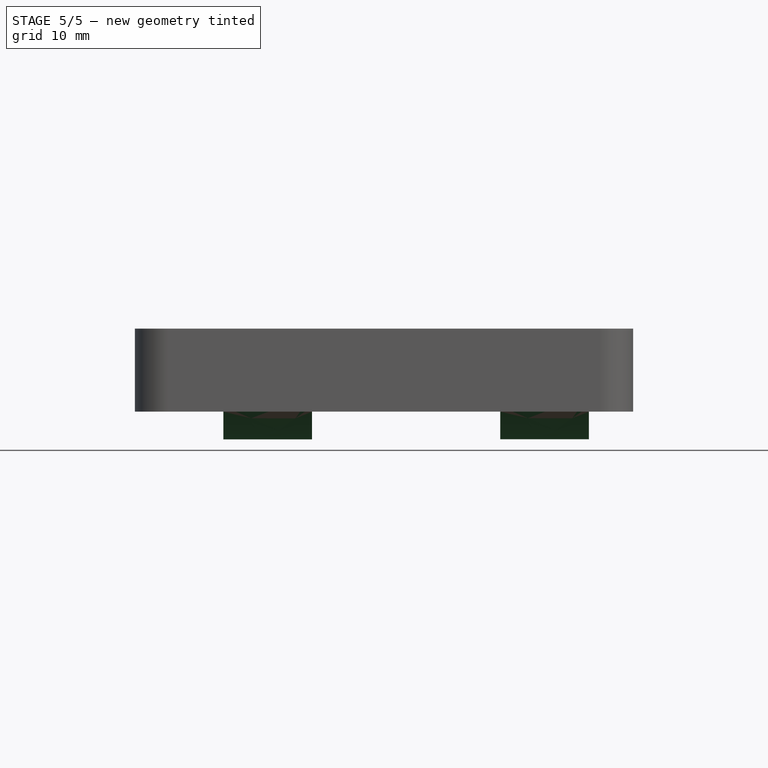
[diagram: stage 5 of 5 — front view after this stage's code; geometry added in this stage tinted green]
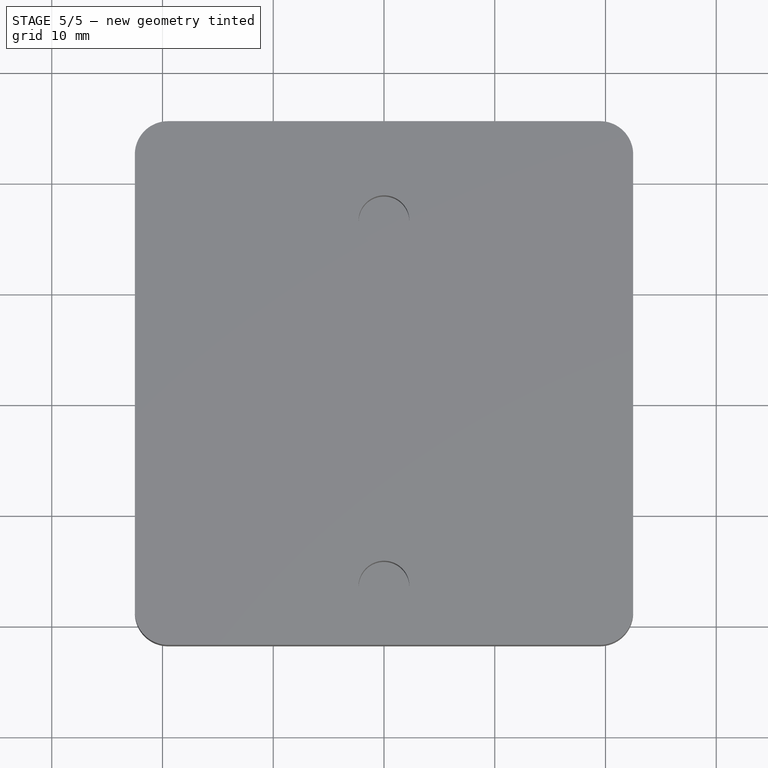
[diagram: stage 5 of 5 — top view after this stage's code; geometry added in this stage tinted green]
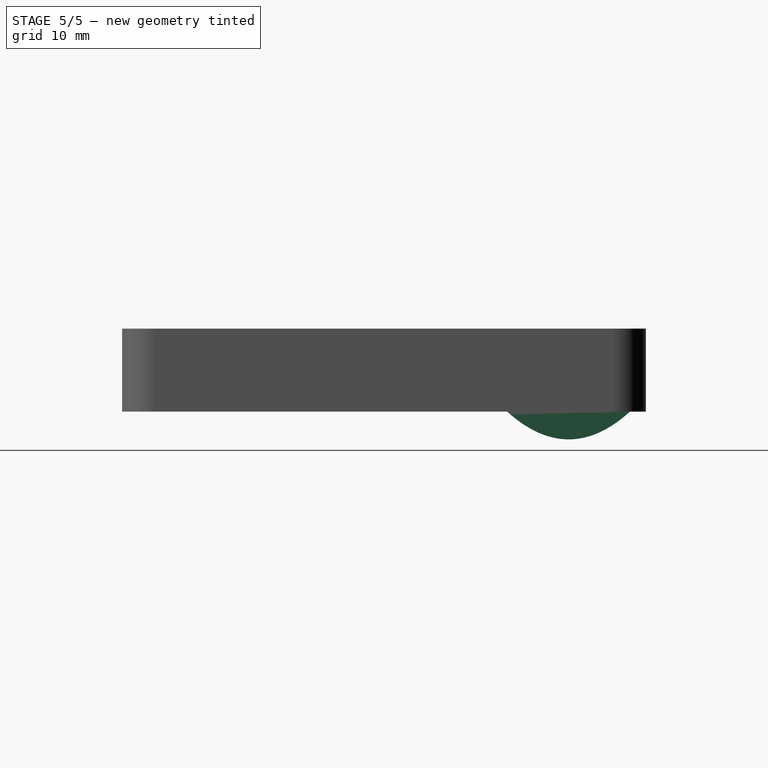
[diagram: stage 5 of 5 — right view after this stage's code; geometry added in this stage tinted green]
FEATURE [Sketcher::SketchObject] Sketch017
  ExternalGeometry = -> [Binder001]
  FullyConstrained = false
  MapMode = 5
  Placement = pos=(0,0,9.2) rot=(1,0,0;3.14159rad)
  Support = -> [Pocket006]
  sketch-geometry (11):
    g0: LineSegment StartX=-15.5 StartY=-7.50503 StartZ=0 EndX=-15.5 EndY=11.3886 EndZ=0
    g1: LineSegment StartX=-15.5 StartY=11.3886 StartZ=0 EndX=13.0024 EndY=11.3886 EndZ=0
    g2: LineSegment StartX=13.0024 StartY=11.3886 StartZ=0 EndX=19.6808 EndY=4.94858 EndZ=0
    g3: LineSegment StartX=19.6808 StartY=4.94858 StartZ=0 EndX=19.6808 EndY=-9.16869 EndZ=0
    g4: LineSegment StartX=19.6808 StartY=-9.16869 StartZ=0 EndX=18.5 EndY=-11.5 EndZ=0
    g5: LineSegment StartX=18.5 StartY=-11.5 StartZ=0 EndX=5.5 EndY=-11.5 EndZ=0
    g6: LineSegment StartX=5.5 StartY=-11.5 StartZ=0 EndX=5.5 EndY=-6.5 EndZ=0
    g7: LineSegment StartX=5.5 StartY=-6.5 StartZ=0 EndX=2.5 EndY=-6.5 EndZ=0
    g8: LineSegment StartX=2.5 StartY=-6.5 StartZ=0 EndX=2.39075 EndY=-11.5 EndZ=0
    g9: LineSegment StartX=2.39075 StartY=-11.5 StartZ=0 EndX=-14.5588 EndY=-11.5 EndZ=0
    g10: LineSegment StartX=-14.5588 StartY=-11.5 StartZ=0 EndX=-15.5 EndY=-7.50503 EndZ=0
  constraints (24):
    c: Vertical(g0)
    c: Coincident(g0,g1)
    c: Horizontal(g1)
    c: Coincident(g1,g2)
    c: Coincident(g2,g3)
    c: Vertical(g3)
    c: Coincident(g3,g4)
    c: Coincident(g4,g5)
    c: Horizontal(g5)
    c: Coincident(g5,g6)
    c: Coincident(g6,g7)
    c: Coincident(g7,g8)
    c: Coincident(g8,g9)
    c: Horizontal(g9)
    c: Coincident(g9,g10)
    c: Coincident(g0,g10)
    c: Distance(g0,g-7) = 4
    c: Horizontal(g7)
    c: DistanceX(g7,g7) = 3
    c: DistanceY(g8,g7) = 5
    c: Horizontal(g9,g-7)
    c: Coincident(g4,g-9)
    c: DistanceX(g5,g-10) = 5
    c: Vertical(g6)
FEATURE [PartDesign::Pocket] Pocket007
  BaseFeature = -> Pocket006
  Direction = (0,0,1)
  Length = 2.5
  Length2 = 5
  Profile = -> Sketch017
  ReferenceAxis = -> Sketch017 [N_Axis]
  Type = 0
FEATURE [Sketcher::SketchObject] Sketch018
  ExternalGeometry = -> [Binder001]
  FullyConstrained = true
  MapMode = 5
  Placement = pos=(0,11.5,0) rot=(1,0,0;1.5708rad)
  Support = -> [Pocket007]
  sketch-geometry (8):
    g0: LineSegment StartX=-14.5 StartY=9.2 StartZ=0 EndX=-6.5 EndY=9.2 EndZ=0
    g1: LineSegment StartX=-6.5 StartY=9.2 StartZ=0 EndX=-6.5 EndY=10.7 EndZ=0
    g2: LineSegment StartX=-6.5 StartY=10.7 StartZ=0 EndX=-14.5 EndY=10.7 EndZ=0
    g3: LineSegment StartX=-14.5 StartY=10.7 StartZ=0 EndX=-14.5 EndY=9.2 EndZ=0
    g4: LineSegment StartX=10.5 StartY=9.2 StartZ=0 EndX=18.5 EndY=9.2 EndZ=0
    g5: LineSegment StartX=18.5 StartY=9.2 StartZ=0 EndX=18.5 EndY=10.7 EndZ=0
    g6: LineSegment StartX=18.5 StartY=10.7 StartZ=0 EndX=10.5 EndY=10.7 EndZ=0
    g7: LineSegment StartX=10.5 StartY=10.7 StartZ=0 EndX=10.5 EndY=9.2 EndZ=0
  constraints (20):
    c: Coincident(g0,g1)
    c: Coincident(g1,g2)
    c: Coincident(g2,g3)
    c: Coincident(g3,g0)
    c: Horizontal(g2)
    c: Vertical(g1)
    c: Vertical(g3)
    c: Coincident(g0,g-3)
    c: Coincident(g4,g5)
    c: Coincident(g5,g6)
    c: Coincident(g6,g7)
    c: Coincident(g7,g4)
    c: Horizontal(g6)
    c: Vertical(g5)
    c: Vertical(g7)
    c: Coincident(g4,g-5)
    c: Coincident(g-4,g0)
    c: Coincident(g-6,g4)
    c: DistanceY(g1,g1) = 1.5
    c: DistanceY(g7,g7) = 1.5
FEATURE [PartDesign::Pocket] Pocket008
  BaseFeature = -> Pocket007
  Direction = (0,1,-2e-16)
  Length = 5
  Length2 = 5
  Profile = -> Sketch018
  ReferenceAxis = -> Sketch018 [N_Axis]
  Type = 1
FEATURE [Sketcher::SketchObject] Sketch019
  ExternalGeometry = -> [Binder001,Pocket008]
  FullyConstrained = false
  MapMode = 5
  Placement = pos=(18.5,0,0) rot=(0.57735,-0.57735,-0.57735;2.0944rad)
  Support = -> [Pocket008]
  sketch-geometry (7):
    g0: LineSegment StartX=-25.5 StartY=10.7 StartZ=0 EndX=-11.5 EndY=10.7 EndZ=0
    g1: Circle CenterX=-25.5 CenterY=10.7 CenterZ=0 NormalX=0 NormalY=0 NormalZ=1 AngleXU=0 Radius=1
    g2: Circle CenterX=-18.5473 CenterY=2.72634 CenterZ=0 NormalX=0 NormalY=0 NormalZ=1 AngleXU=0 Radius=1
    g3: Circle CenterX=-11.5 CenterY=10.7 CenterZ=0 NormalX=0 NormalY=0 NormalZ=1 AngleXU=0 Radius=1
    g4: BSplineCurve PolesCount=3 KnotsCount=2 Degree=2 IsPeriodic=0
    g5: GeomPoint X=-25.5 Y=10.7 Z=0
    g6: GeomPoint X=-11.5 Y=10.7 Z=0
  constraints (12):
    c: Coincident(g0,g-4)
    c: Coincident(g0,g-4)
    c: Weight(g1) = 1
    c: Coincident(g4,g0)
    c: Equal(g1,g2)
    c: Equal(g1,g3)
    c: Coincident(g4,g0)
    c: InternalAlignment(g1,g4)
    c: InternalAlignment(g2,g4)
    c: InternalAlignment(g3,g4)
    c: InternalAlignment(g5,g4)
    c: InternalAlignment(g6,g4)
FEATURE [PartDesign::Pad] Pad003
  BaseFeature = -> Pocket008
  Direction = (-1,0,0)
  Length = 10
  Length2 = 10
  Profile = -> Sketch019
  ReferenceAxis = -> Sketch019 [N_Axis]
  Type = 3
  UpToFace = -> Pocket008 [Face10]
FEATURE [Sketcher::SketchObject] Sketch020
  ExternalGeometry = -> [Pad003]
  FullyConstrained = false
  MapMode = 5
  Placement = pos=(-6.5,0,0) rot=(0.57735,-0.57735,-0.57735;2.0944rad)
  Support = -> [Pad003]
  sketch-geometry (7):
    g0: LineSegment StartX=-25.5 StartY=10.7 StartZ=0 EndX=-11.5 EndY=10.7 EndZ=0
    g1: Circle CenterX=-25.5 CenterY=10.7 CenterZ=0 NormalX=0 NormalY=0 NormalZ=1 AngleXU=0 Radius=1
    g2: Circle CenterX=-18.5607 CenterY=2.69726 CenterZ=0 NormalX=0 NormalY=0 NormalZ=1 AngleXU=0 Radius=1
    g3: Circle CenterX=-11.5 CenterY=10.7 CenterZ=0 NormalX=0 NormalY=0 NormalZ=1 AngleXU=0 Radius=1
    g4: BSplineCurve PolesCount=3 KnotsCount=2 Degree=2 IsPeriodic=0
    g5: GeomPoint X=-25.5 Y=10.7 Z=0
    g6: GeomPoint X=-11.5 Y=10.7 Z=0
  constraints (12):
    c: Coincident(g0,g-3)
    c: Coincident(g0,g-3)
    c: Weight(g1) = 1
    c: Coincident(g4,g0)
    c: Equal(g1,g2)
    c: Equal(g1,g3)
    c: Coincident(g4,g0)
    c: InternalAlignment(g1,g4)
    c: InternalAlignment(g2,g4)
    c: InternalAlignment(g3,g4)
    c: InternalAlignment(g5,g4)
    c: InternalAlignment(g6,g4)
FEATURE [PartDesign::Pad] Pad004
  BaseFeature = -> Pad003
  Direction = (-1,0,0)
  Length = 10
  Length2 = 10
  Profile = -> Sketch020
  ReferenceAxis = -> Sketch020 [N_Axis]
  Type = 3
  UpToFace = -> Pad003 [Face6]
FEATURE [PartDesign::Body] Body001  label="lbottom"
  Group = -> [Binder001,Sketch014,Pad002,Sketch015,Pocket005,Sketch016,Pocket006,Sketch017,Pocket007,Sketch018,Pocket008,Sketch019,Pad003,Sketch020,Pad004]
  Origin = -> Origin001
  Tip = -> Pad004
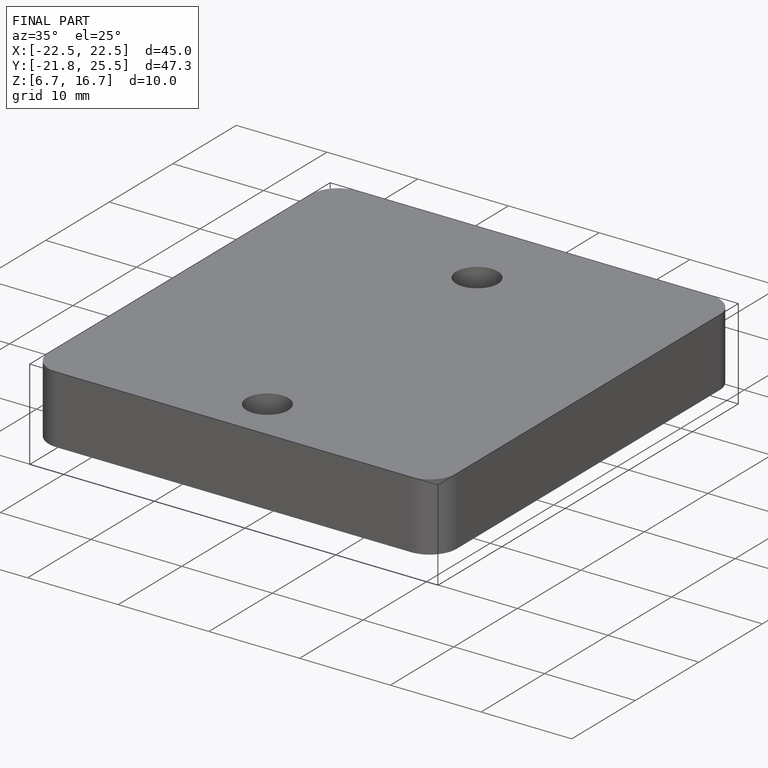
[diagram: finished part — iso view with bounding-box wireframe]
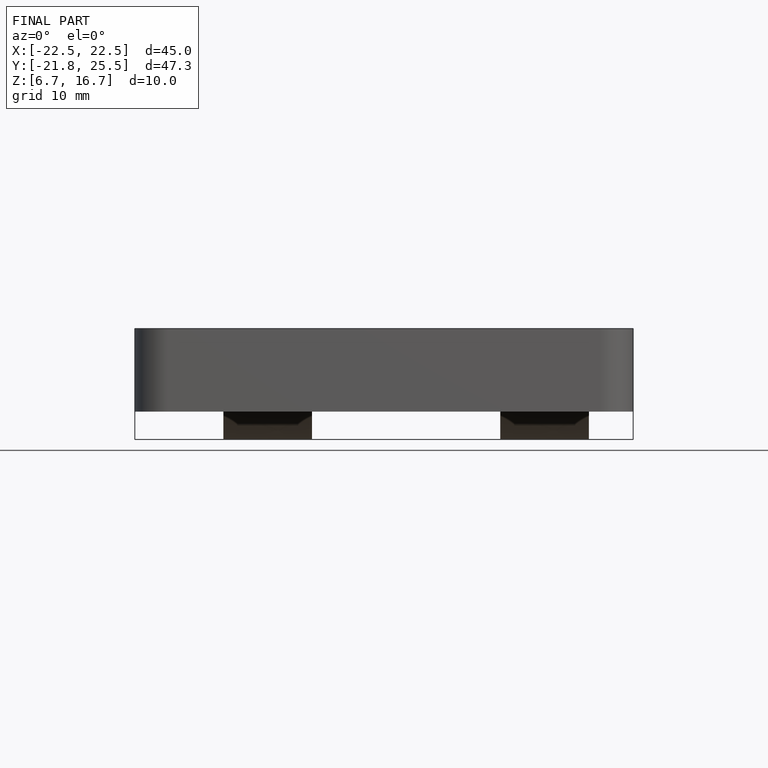
[diagram: finished part — front view with bounding-box wireframe]
